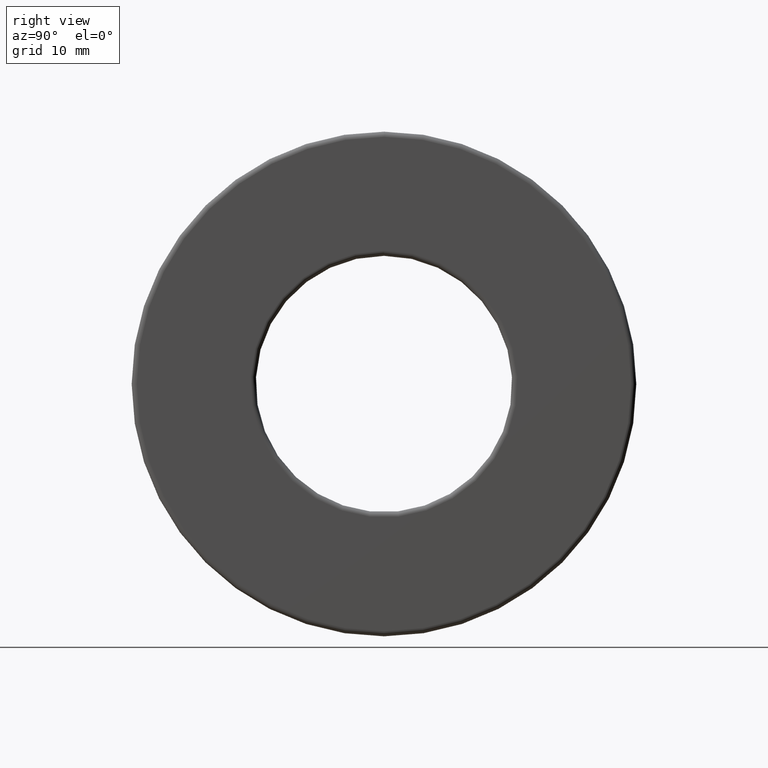
[diagram: clean part render]
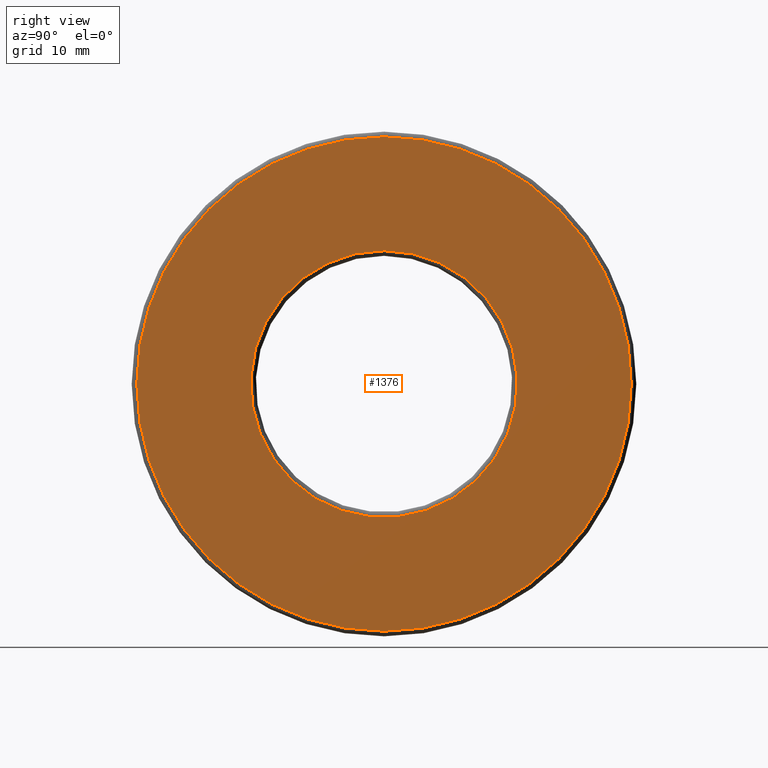
[diagram: same view with one face highlighted and labeled with its STEP entity id]
A machine part, right view. The second image highlights one B-rep face of the part: STEP entity #1376.
In plain terms, the highlighted planar face has unit normal (1, 0, 0).
Its self-contained STEP definition (entity closure, byte-faithful):
#46 = EDGE_CURVE ( 'NONE', #1109, #1109, #132, .T. ) ;
#103 = CIRCLE ( 'NONE', #381, 0.9643749999999999800 ) ;
#132 = CIRCLE ( 'NONE', #1355, 0.5199999999999999100 ) ;
#146 = FACE_OUTER_BOUND ( 'NONE', #793, .T. ) ;
#375 = DIRECTION ( 'NONE',  ( 0.0000000000000000000, 0.0000000000000000000, -1.000000000000000000 ) ) ;
#381 = AXIS2_PLACEMENT_3D ( 'NONE', #789, #1347, #677 ) ;
#395 = PLANE ( 'NONE',  #1212 ) ;
#570 = DIRECTION ( 'NONE',  ( -1.000000000000000000, -0.0000000000000000000, -0.0000000000000000000 ) ) ;
#677 = DIRECTION ( 'NONE',  ( 0.0000000000000000000, 0.0000000000000000000, 1.000000000000000000 ) ) ;
#744 = DIRECTION ( 'NONE',  ( 1.000000000000000000, 0.0000000000000000000, 0.0000000000000000000 ) ) ;
#789 = CARTESIAN_POINT ( 'NONE',  ( 0.3125000000000000000, 0.0000000000000000000, 0.0000000000000000000 ) ) ;
#793 = EDGE_LOOP ( 'NONE', ( #948 ) ) ;
#851 = CARTESIAN_POINT ( 'NONE',  ( 0.3125000000000000000, 0.0000000000000000000, 0.5199999999999999100 ) ) ;
#868 = EDGE_LOOP ( 'NONE', ( #1255 ) ) ;
#928 = CARTESIAN_POINT ( 'NONE',  ( 0.3125000000000000000, 0.0000000000000000000, 0.0000000000000000000 ) ) ;
#948 = ORIENTED_EDGE ( 'NONE', *, *, #1136, .F. ) ;
#981 = FACE_BOUND ( 'NONE', #868, .T. ) ;
#1040 = DIRECTION ( 'NONE',  ( 0.0000000000000000000, 0.0000000000000000000, 1.000000000000000000 ) ) ;
#1109 = VERTEX_POINT ( 'NONE', #851 ) ;
#1112 = CARTESIAN_POINT ( 'NONE',  ( 0.3125000000000000000, 0.0000000000000000000, 0.9643749999999999800 ) ) ;
#1136 = EDGE_CURVE ( 'NONE', #1380, #1380, #103, .T. ) ;
#1187 = CARTESIAN_POINT ( 'NONE',  ( 0.3125000000000000000, 0.0000000000000000000, 0.0000000000000000000 ) ) ;
#1212 = AXIS2_PLACEMENT_3D ( 'NONE', #1187, #744, #375 ) ;
#1255 = ORIENTED_EDGE ( 'NONE', *, *, #46, .T. ) ;
#1347 = DIRECTION ( 'NONE',  ( -1.000000000000000000, -0.0000000000000000000, -0.0000000000000000000 ) ) ;
#1355 = AXIS2_PLACEMENT_3D ( 'NONE', #928, #570, #1040 ) ;
#1376 = ADVANCED_FACE ( 'NONE', ( #981, #146 ), #395, .T. ) ;
#1380 = VERTEX_POINT ( 'NONE', #1112 ) ;